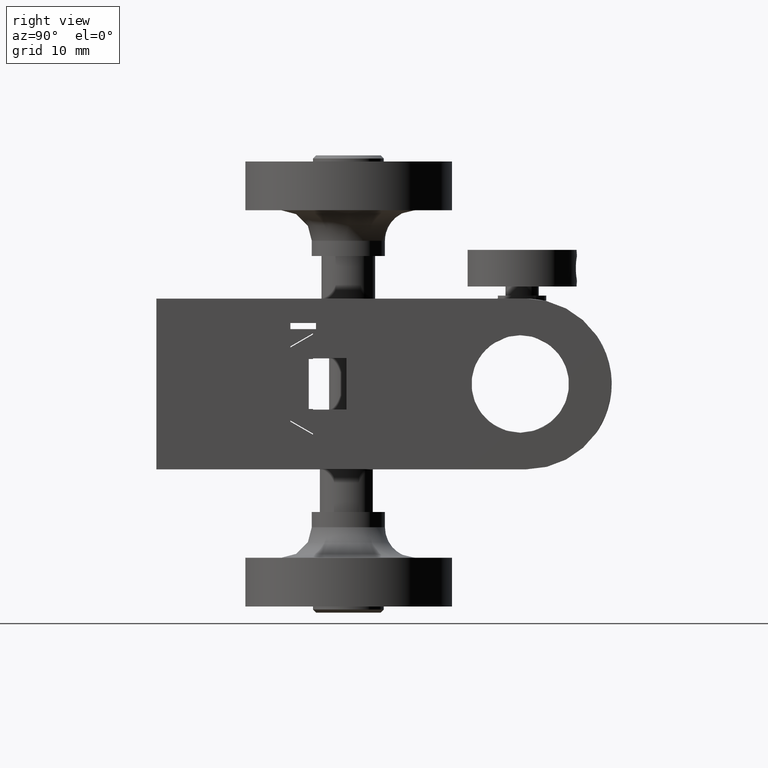
[diagram: clean part render]
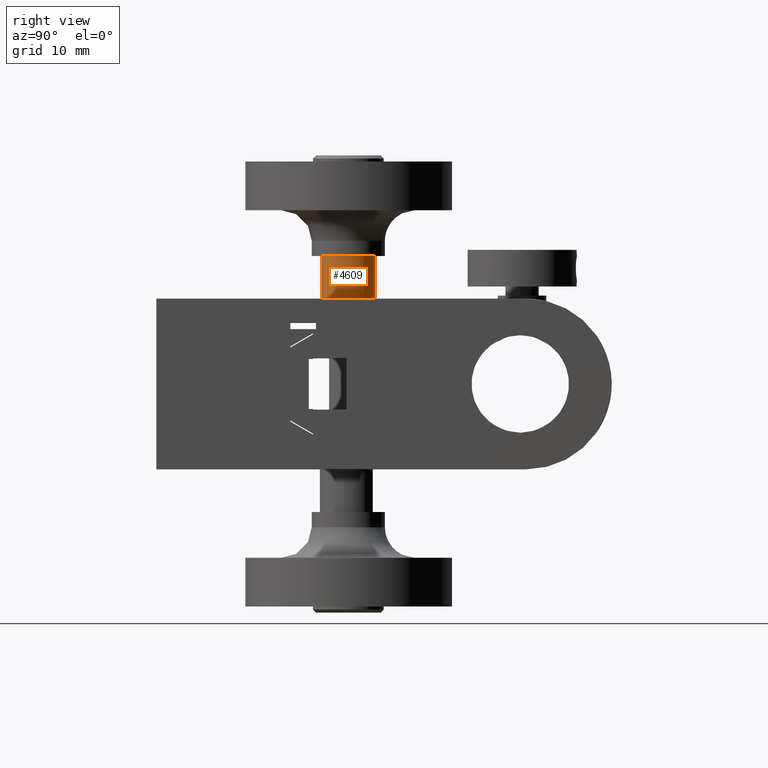
[diagram: same view with one face highlighted and labeled with its STEP entity id]
A machine part, right view. The second image highlights one B-rep face of the part: STEP entity #4609.
In plain terms, the highlighted cylindrical surface (bore or boss wall) has radius 4.4 mm, axis along (0, 0, -1).
Its self-contained STEP definition (entity closure, byte-faithful):
#22 = VERTEX_POINT ( 'NONE', #47 ) ;
#26 = CARTESIAN_POINT ( 'NONE',  ( 0.000000000000000000, 31.49999999999999289, 20.99999999999999645 ) ) ;
#47 = CARTESIAN_POINT ( 'NONE',  ( 0.000000000000000000, 35.89999999999997016, 13.99999999999999822 ) ) ;
#51 = DIRECTION ( 'NONE',  ( 0.000000000000000000, 9.251858538542970348E-17, -1.000000000000000000 ) ) ;
#460 = DIRECTION ( 'NONE',  ( 0.000000000000000000, 9.251858538542970348E-17, -1.000000000000000000 ) ) ;
#508 = FACE_OUTER_BOUND ( 'NONE', #2535, .T. ) ;
#594 = AXIS2_PLACEMENT_3D ( 'NONE', #26, #51, #1210 ) ;
#683 = CIRCLE ( 'NONE', #594, 4.399999999999979927 ) ;
#1210 = DIRECTION ( 'NONE',  ( 0.000000000000000000, 1.000000000000000000, 0.000000000000000000 ) ) ;
#1678 = EDGE_CURVE ( 'NONE', #22, #22, #5078, .T. ) ;
#2008 = CARTESIAN_POINT ( 'NONE',  ( 0.000000000000000000, 31.49999999999999289, 13.99999999999999822 ) ) ;
#2033 = ORIENTED_EDGE ( 'NONE', *, *, #1678, .T. ) ;
#2328 = VERTEX_POINT ( 'NONE', #4334 ) ;
#2383 = AXIS2_PLACEMENT_3D ( 'NONE', #2435, #460, #3689 ) ;
#2435 = CARTESIAN_POINT ( 'NONE',  ( 0.000000000000000000, 31.50000000000000000, -37.50000000000000000 ) ) ;
#2512 = CYLINDRICAL_SURFACE ( 'NONE', #2383, 4.399999999999979927 ) ;
#2535 = EDGE_LOOP ( 'NONE', ( #2033 ) ) ;
#2547 = ORIENTED_EDGE ( 'NONE', *, *, #2735, .T. ) ;
#2735 = EDGE_CURVE ( 'NONE', #2328, #2328, #683, .T. ) ;
#3689 = DIRECTION ( 'NONE',  ( 0.000000000000000000, 1.000000000000000000, 0.000000000000000000 ) ) ;
#3898 = DIRECTION ( 'NONE',  ( -0.000000000000000000, -9.251858538542970348E-17, 1.000000000000000000 ) ) ;
#3921 = DIRECTION ( 'NONE',  ( 0.000000000000000000, 1.000000000000000000, 0.000000000000000000 ) ) ;
#4199 = EDGE_LOOP ( 'NONE', ( #2547 ) ) ;
#4262 = AXIS2_PLACEMENT_3D ( 'NONE', #2008, #3898, #3921 ) ;
#4334 = CARTESIAN_POINT ( 'NONE',  ( 0.000000000000000000, 35.89999999999997016, 20.99999999999999645 ) ) ;
#4609 = ADVANCED_FACE ( 'NONE', ( #4742, #508 ), #2512, .T. ) ;
#4742 = FACE_OUTER_BOUND ( 'NONE', #4199, .T. ) ;
#5078 = CIRCLE ( 'NONE', #4262, 4.399999999999979927 ) ;